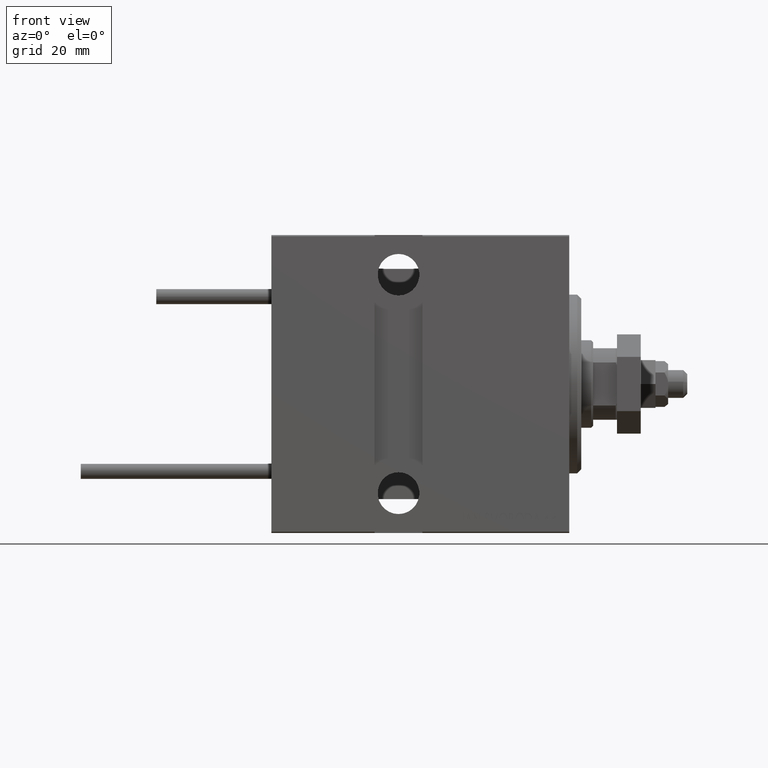
[diagram: clean part render]
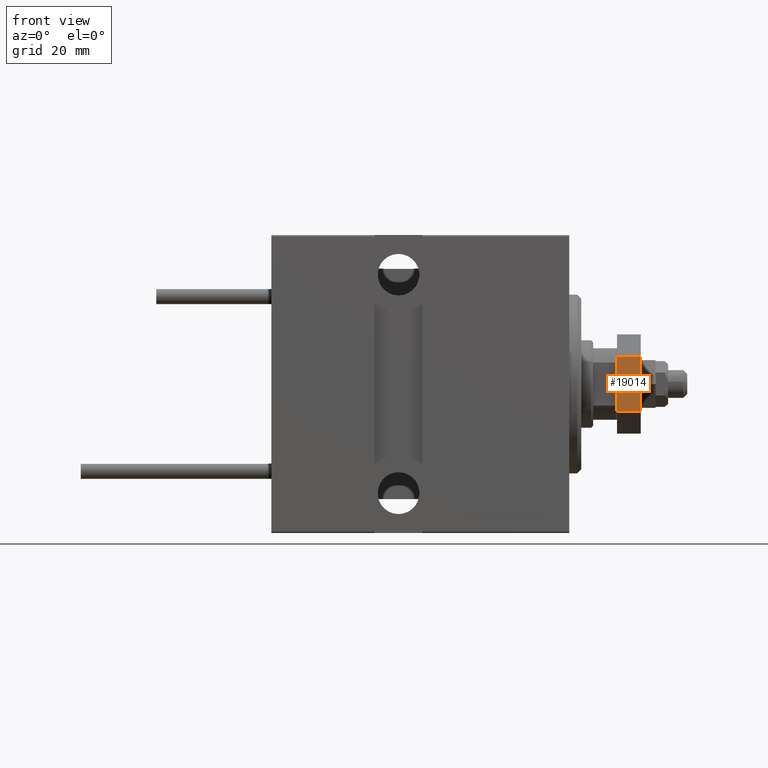
[diagram: same view with one face highlighted and labeled with its STEP entity id]
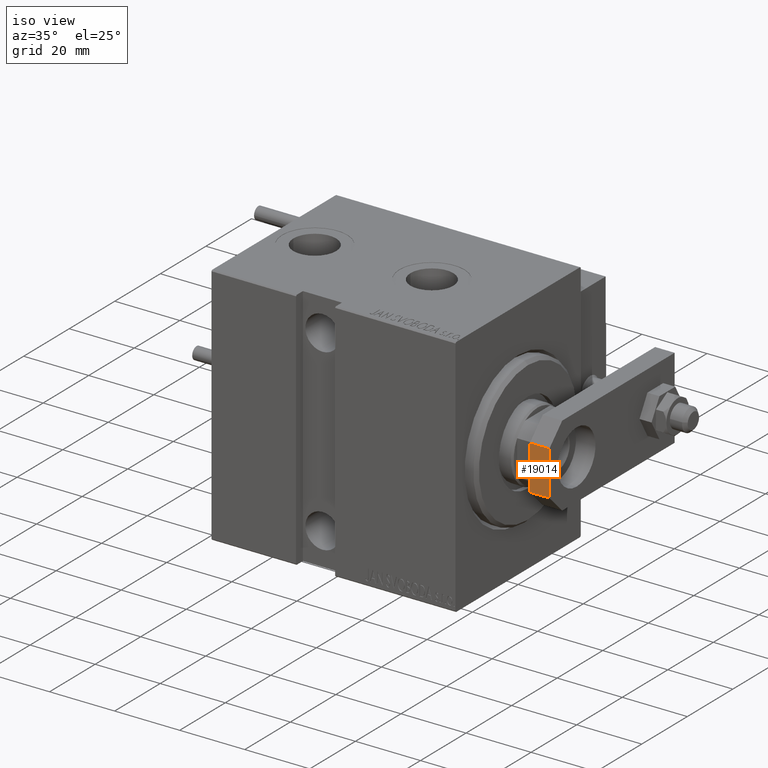
[diagram: same view with one face highlighted and labeled with its STEP entity id]
A machine part, front view. The second image highlights one B-rep face of the part: STEP entity #19014.
A second angle (iso view) of the same face is appended — the face is thin or edge-on in the first view.
In plain terms, the highlighted planar face has unit normal (0, 1, 0).
Its self-contained STEP definition (entity closure, byte-faithful):
#123 = ORIENTED_EDGE ( 'NONE', *, *, #16598, .T. ) ;
#835 = ORIENTED_EDGE ( 'NONE', *, *, #46429, .T. ) ;
#1071 = CARTESIAN_POINT ( 'NONE',  ( 6.839999999999998970, 4.814824860968089633E-32, 6.000000000000000000 ) ) ;
#1676 = LINE ( 'NONE', #24605, #25055 ) ;
#1711 = VECTOR ( 'NONE', #49757, 1000.000000000000000 ) ;
#2609 = VERTEX_POINT ( 'NONE', #1071 ) ;
#5763 = LINE ( 'NONE', #48592, #40640 ) ;
#6260 = DIRECTION ( 'NONE',  ( 1.000000000000000000, 0.000000000000000000, 0.000000000000000000 ) ) ;
#6868 = EDGE_CURVE ( 'NONE', #47933, #22355, #5763, .T. ) ;
#7226 = PLANE ( 'NONE',  #49775 ) ;
#7419 = CARTESIAN_POINT ( 'NONE',  ( 6.839999999999998970, 4.814824860968089633E-32, 6.000000000000000000 ) ) ;
#16490 = ORIENTED_EDGE ( 'NONE', *, *, #6868, .T. ) ;
#16598 = EDGE_CURVE ( 'NONE', #31573, #47933, #33213, .T. ) ;
#17861 = DIRECTION ( 'NONE',  ( 0.000000000000000000, 0.000000000000000000, -1.000000000000000000 ) ) ;
#19014 = ADVANCED_FACE ( 'NONE', ( #41763 ), #7226, .F. ) ;
#22355 = VERTEX_POINT ( 'NONE', #26722 ) ;
#22615 = CARTESIAN_POINT ( 'NONE',  ( -12.50000000000000355, 4.814824860968089633E-32, 6.000000000000000000 ) ) ;
#24605 = CARTESIAN_POINT ( 'NONE',  ( -12.50000000000000355, 4.814824860968089633E-32, 6.000000000000000000 ) ) ;
#25055 = VECTOR ( 'NONE', #36668, 1000.000000000000000 ) ;
#25646 = DIRECTION ( 'NONE',  ( 0.000000000000000000, 1.000000000000000000, 0.000000000000000000 ) ) ;
#26722 = CARTESIAN_POINT ( 'NONE',  ( 6.839999999999998970, 4.814824860968089633E-32, 0.000000000000000000 ) ) ;
#28669 = CARTESIAN_POINT ( 'NONE',  ( -6.840000000000012292, 4.814824860968089633E-32, 6.000000000000000000 ) ) ;
#30389 = VECTOR ( 'NONE', #17861, 1000.000000000000000 ) ;
#30649 = CARTESIAN_POINT ( 'NONE',  ( -6.840000000000012292, 4.814824860968089633E-32, 6.000000000000000000 ) ) ;
#31095 = LINE ( 'NONE', #7419, #1711 ) ;
#31573 = VERTEX_POINT ( 'NONE', #30649 ) ;
#33213 = LINE ( 'NONE', #28669, #30389 ) ;
#36668 = DIRECTION ( 'NONE',  ( 1.000000000000000000, 0.000000000000000000, 0.000000000000000000 ) ) ;
#37974 = DIRECTION ( 'NONE',  ( 0.000000000000000000, -0.000000000000000000, 1.000000000000000000 ) ) ;
#40640 = VECTOR ( 'NONE', #6260, 1000.000000000000000 ) ;
#41197 = EDGE_LOOP ( 'NONE', ( #41204, #123, #16490, #835 ) ) ;
#41204 = ORIENTED_EDGE ( 'NONE', *, *, #43172, .F. ) ;
#41763 = FACE_OUTER_BOUND ( 'NONE', #41197, .T. ) ;
#43172 = EDGE_CURVE ( 'NONE', #31573, #2609, #1676, .T. ) ;
#46429 = EDGE_CURVE ( 'NONE', #22355, #2609, #31095, .T. ) ;
#47933 = VERTEX_POINT ( 'NONE', #49354 ) ;
#48592 = CARTESIAN_POINT ( 'NONE',  ( -12.50000000000000355, 4.814824860968089633E-32, 0.000000000000000000 ) ) ;
#49354 = CARTESIAN_POINT ( 'NONE',  ( -6.840000000000012292, 4.814824860968089633E-32, 0.000000000000000000 ) ) ;
#49757 = DIRECTION ( 'NONE',  ( 0.000000000000000000, 0.000000000000000000, 1.000000000000000000 ) ) ;
#49775 = AXIS2_PLACEMENT_3D ( 'NONE', #22615, #25646, #37974 ) ;